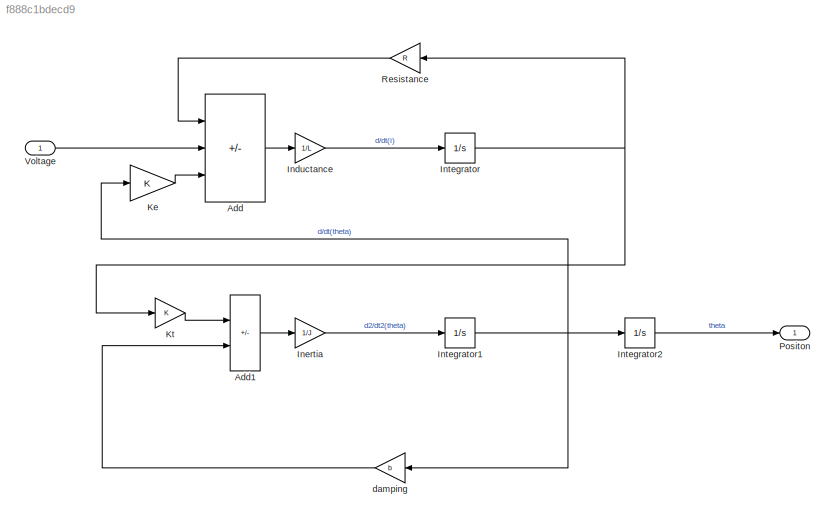
MODEL slx_f888c1bdecd9
KIND model
CONFIG AbsTol = auto
CONFIG EnableMultiTasking = off
CONFIG FixedStep = auto
CONFIG MaxStep = auto
CONFIG MinStep = auto
CONFIG RelTol = 1e-3
CONFIG SampleTimeConstraint = Unconstrained
CONFIG Solver = VariableStepAuto
CONFIG SolverName = VariableStepAuto
CONFIG StartTime = 0.0
CONFIG StopTime = 10.0
BLOCK [Sum]  Add
  IconShape = rectangular
  Inputs = -+-
  Ports = [3, 1]
BLOCK [Sum]  Add1
  IconShape = rectangular
  Inputs = +-
  Ports = [2, 1]
BLOCK [Integrator]  Integrator
  Ports = [1, 1]
BLOCK [Integrator]  Integrator1
  Ports = [1, 1]
BLOCK [Integrator]  Integrator2
  Ports = [1, 1]
BLOCK [Outport]  Positon
  OutDataTypeStr = double
  PortDimensions = 1
  SampleTime = 0
  SamplingMode = Sample based
  SignalType = real
BLOCK [Gain] Inductance
  Gain = 1/L
BLOCK [Gain] Inertia
  Gain = 1/J
BLOCK [Gain] Ke
  Gain = K
BLOCK [Gain] Kt
  Gain = K
BLOCK [Gain] Resistance
  Gain = R
  NameLocation = top
BLOCK [Inport] Voltage
  OutDataTypeStr = double
  PortDimensions = 1
  SampleTime = 0
  SamplingMode = Sample based
  SignalType = real
BLOCK [Gain] damping
  Gain = b
  NameLocation = top
LINE  Add1:1 -> Inertia:1
LINE  Add:1 -> Inductance:1
NET  Integrator1:1 ->  Integrator2:1, Ke:1, damping:1
LINE  Integrator2:1 ->  Positon:1
NET  Integrator:1 -> Kt:1, Resistance:1
LINE Inductance:1 ->  Integrator:1
LINE Inertia:1 ->  Integrator1:1
LINE Ke:1 ->  Add:3
LINE Kt:1 ->  Add1:1
LINE Resistance:1 ->  Add:1
LINE Voltage:1 ->  Add:2
LINE damping:1 ->  Add1:2
note: NET lines group one-source signal fan-out (src -> all destinations, sorted); 1:1 wires keep LINE
